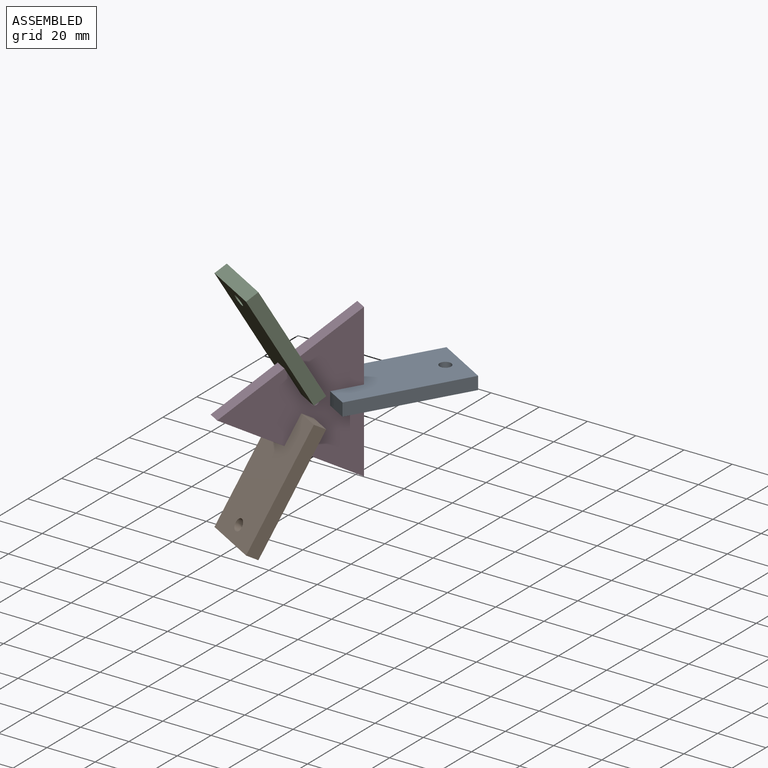
[diagram: assembled view]
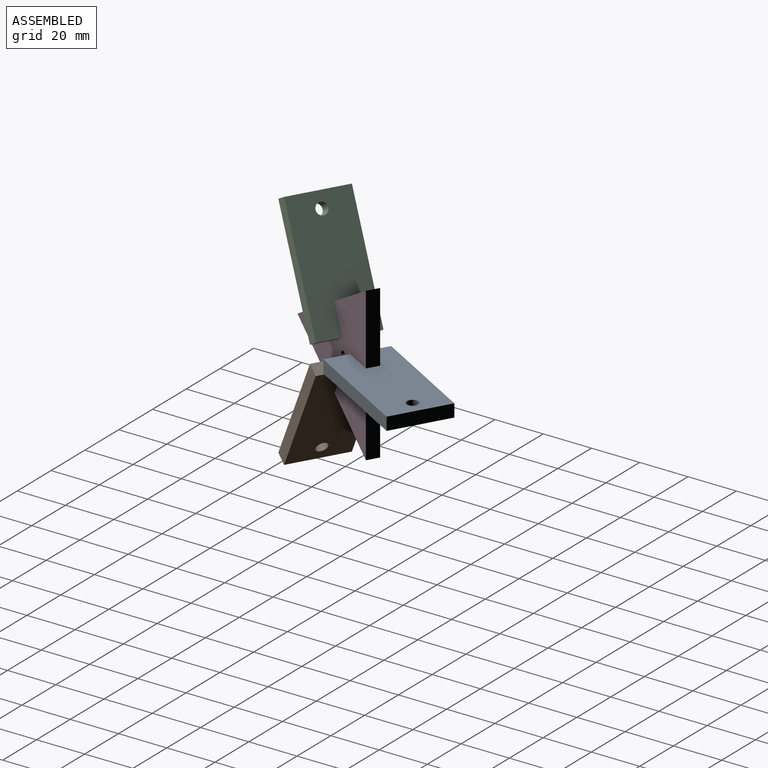
[diagram: assembled view, second angle]
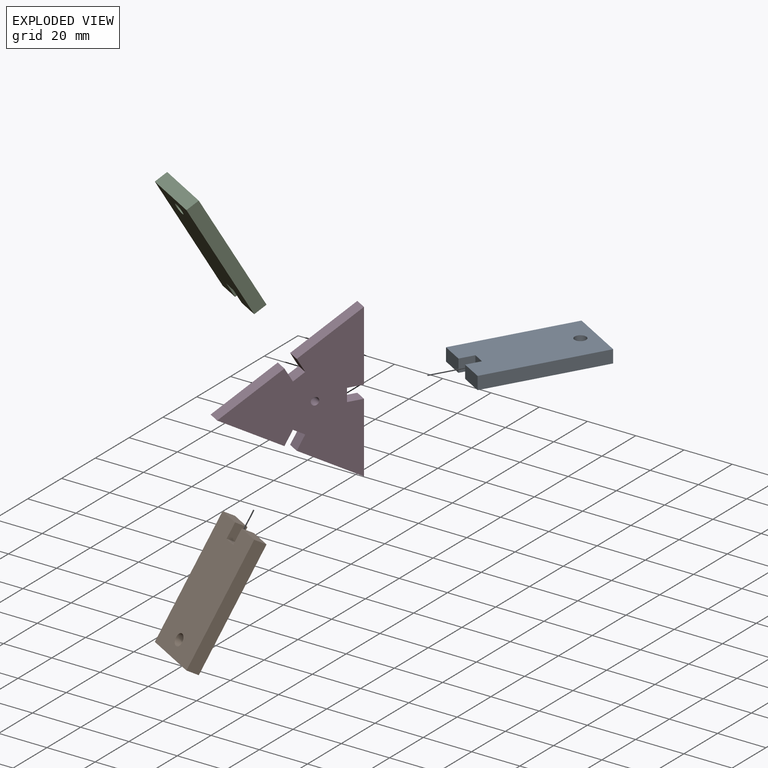
[diagram: exploded view]
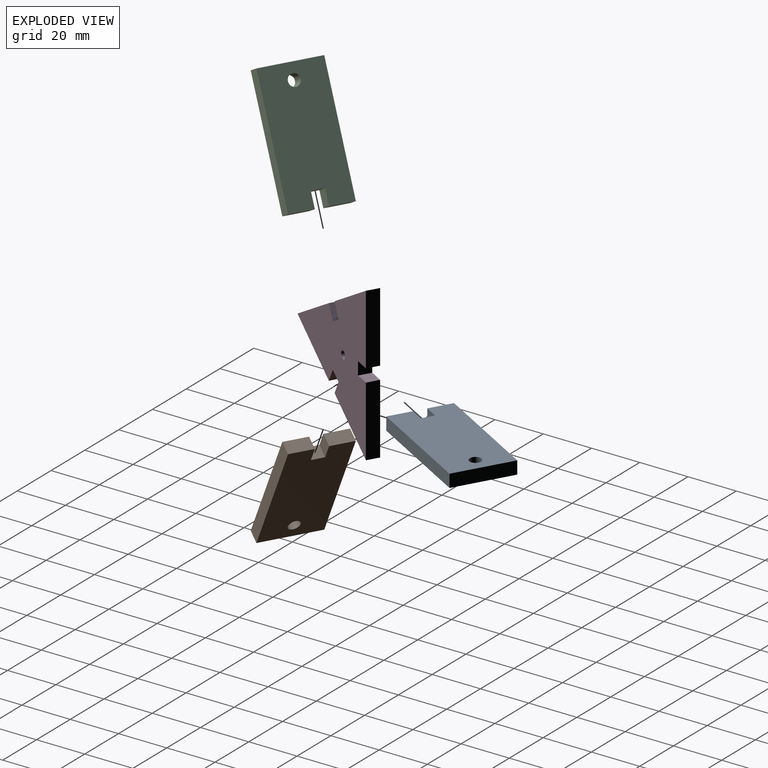
[diagram: exploded view, second angle]
ASSEMBLY  parts=4 mates=3
PART A: 11 faces, bbox 47.4x56.7x5.3 mm
  f0: plane 22x12.7mm, normal (0.5,0.87,0), area 135.5mm2, adj f1,f8,f9,f10
  f1: plane 43.99x25.4mm, normal (-0.87,0.5,0), area 271mm2, adj f0,f2,f9,f10
  f2: plane 8.69x5.33mm, normal (-0.5,-0.87,0), area 53.5mm2, adj f1,f3,f9,f10
  f3: plane 5.5x5.33mm, normal (0.87,-0.5,0), area 33.9mm2, adj f2,f4,f9,f10
  f4: plane 5.33x4.62mm, normal (-0.5,-0.87,0), area 28.5mm2, adj f3,f5,f9,f10
  f5: plane 5.5x5.33mm, normal (-0.87,0.5,0), area 33.9mm2, adj f4,f6,f9,f10
  f6: plane 8.69x5.33mm, normal (-0.5,-0.87,0), area 53.5mm2, adj f5,f8,f9,f10
  f7: cylinder r=2.39mm len=5.33mm, axis (0,0,-1), area 80mm2, adj f9,f10
  f8: plane 43.99x25.4mm, normal (0.87,-0.5,0), area 271mm2, adj f0,f6,f9,f10
  f9: plane 56.69x47.4mm, normal (0,0,1), area 1238.5mm2, adj f0,f1,f2,f3,f4,f5,f6,f7
  f10: plane 56.69x47.4mm, normal (0,0,-1), area 1238.5mm2, adj f0,f1,f2,f3,f4,f5,f6,f7
PART B: same geometry as A
PART C: same geometry as A
PART D: 18 faces, bbox 63.5x55x5.3 mm
  f0: plane 5.5x5.33mm, normal (0.5,0.87,0), area 33.9mm2, adj f1,f15,f16,f17
  f1: plane 5.33x4.62mm, normal (0.87,-0.5,0), area 28.5mm2, adj f0,f2,f16,f17
  f2: plane 5.5x5.33mm, normal (-0.5,-0.87,0), area 33.9mm2, adj f1,f3,f16,f17
  f3: plane 25.19x14.54mm, normal (0.87,-0.5,0), area 155.1mm2, adj f2,f4,f16,f17
  f4: plane 29.08x5.33mm, normal (0,1,0), area 155.1mm2, adj f3,f5,f16,f17
  f5: plane 6.35x5.33mm, normal (-1,0,0), area 33.9mm2, adj f4,f6,f16,f17
  f6: plane 5.33x5.33mm, normal (0,1,0), area 28.5mm2, adj f5,f7,f16,f17
  f7: plane 6.35x5.33mm, normal (1,0,0), area 33.9mm2, adj f6,f8,f16,f17
  f8: plane 29.08x5.33mm, normal (0,1,0), area 155.1mm2, adj f7,f9,f16,f17
  f9: plane 25.19x14.54mm, normal (-0.87,-0.5,0), area 155.1mm2, adj f8,f10,f16,f17
  f10: plane 5.5x5.33mm, normal (0.5,-0.87,0), area 33.9mm2, adj f9,f11,f16,f17
  f11: plane 5.33x4.62mm, normal (-0.87,-0.5,0), area 28.5mm2, adj f10,f12,f16,f17
  f12: plane 5.5x5.33mm, normal (-0.5,0.87,0), area 33.9mm2, adj f11,f13,f16,f17
  f13: plane 25.19x14.54mm, normal (-0.87,-0.5,0), area 155.1mm2, adj f12,f15,f16,f17
  f14: cylinder r=1.59mm len=5.33mm, axis (0,0,-1), area 53.2mm2, adj f16,f17
  f15: plane 25.19x14.54mm, normal (0.87,-0.5,0), area 155.1mm2, adj f0,f13,f16,f17
  f16: plane 63.5x54.99mm, normal (0,0,1), area 1636.5mm2, adj f0,f1,f2,f3,f4,f5,f6,f7
  f17: plane 63.5x54.99mm, normal (0,0,-1), area 1636.5mm2, adj f0,f1,f2,f3,f4,f5,f6,f7
PLACE A t=(111.57,62.65,23.6)mm
PLACE B rot(axis=(0.25,0.43,-0.87),180deg) t=(-49.74,81.39,-13.6)mm
PLACE C rot(axis=(0.25,0.43,0.87),180deg) t=(-52.05,77.39,63.46)mm
PLACE D rot(axis=(0.51,-0.51,-0.69),158.9deg) t=(67.17,129.48,-47.52)mm
MATE fastened C.f4 <-> D.f6  axis (0.25,0.43,-0.87) through (21.78,56.2,36.64)mm
MATE fastened D.f11 <-> A.f4  axis (0.5,0.87,0) through (30.77,71.76,26.27)mm
MATE fastened D.f1 <-> B.f4  axis (-0.25,-0.43,-0.87) through (21.78,56.2,15.89)mm
